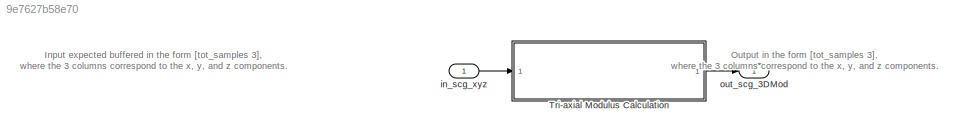
MODEL slx_9e7627b58e70
KIND model
CONFIG AbsTol = auto
CONFIG EnableMultiTasking = off
CONFIG FixedStep = 1/fs
CONFIG MaxStep = 1/fs
CONFIG MinStep = auto
CONFIG RelTol = 1e-3
CONFIG SampleTimeConstraint = Unconstrained
CONFIG Solver = FixedStepDiscrete
CONFIG SolverName = FixedStepDiscrete
CONFIG StartTime = 0.0
CONFIG StopTime = param_sim_time
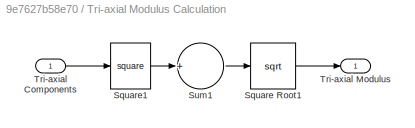
BLOCK [SubSystem] Tri-axial Modulus Calculation
  Ports = [1, 1]
  RequestExecContextInheritance = off
BLOCK [Sqrt] Tri-axial Modulus Calculation/Square Root1
BLOCK [Math] Tri-axial Modulus Calculation/Square1
  Operator = square
  Ports = [1, 1]
BLOCK [Sum] Tri-axial Modulus Calculation/Sum1
  CollapseDim = 2
  CollapseMode = Specified dimension
  InputSameDT = off
  Inputs = +
  OutDataTypeStr = Inherit: Inherit via internal rule
  Ports = [1, 1]
  SaturateOnIntegerOverflow = off
BLOCK [Inport] Tri-axial Modulus Calculation/Tri-axial Components
  IconDisplay = Port number
BLOCK [Outport] Tri-axial Modulus Calculation/Tri-axial Modulus
  IconDisplay = Port number
BLOCK [Inport] in_scg_xyz
  IconDisplay = Port number
  SampleTime = 1/fs
BLOCK [Outport] out_scg_3DMod
  IconDisplay = Port number
ANNOTATION (root): Input expected buffered in the form [tot_samples 3], where the 3 columns correspond to the x, y, and z components.
ANNOTATION (root): Output in the form [tot_samples 3], where the 3 columns correspond to the x, y, and z components.
LINE Tri-axial Modulus Calculation/Square Root1:1 -> Tri-axial Modulus Calculation/Tri-axial Modulus:1
LINE Tri-axial Modulus Calculation/Square1:1 -> Tri-axial Modulus Calculation/Sum1:1
LINE Tri-axial Modulus Calculation/Sum1:1 -> Tri-axial Modulus Calculation/Square Root1:1
LINE Tri-axial Modulus Calculation/Tri-axial Components:1 -> Tri-axial Modulus Calculation/Square1:1
LINE Tri-axial Modulus Calculation:1 -> out_scg_3DMod:1
LINE in_scg_xyz:1 -> Tri-axial Modulus Calculation:1
